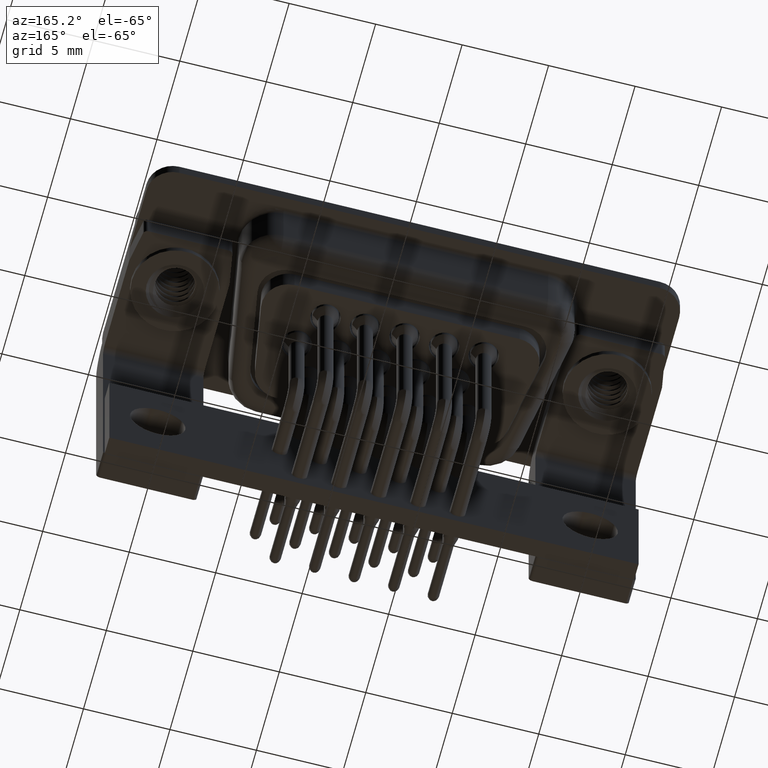
[diagram: clean part render]
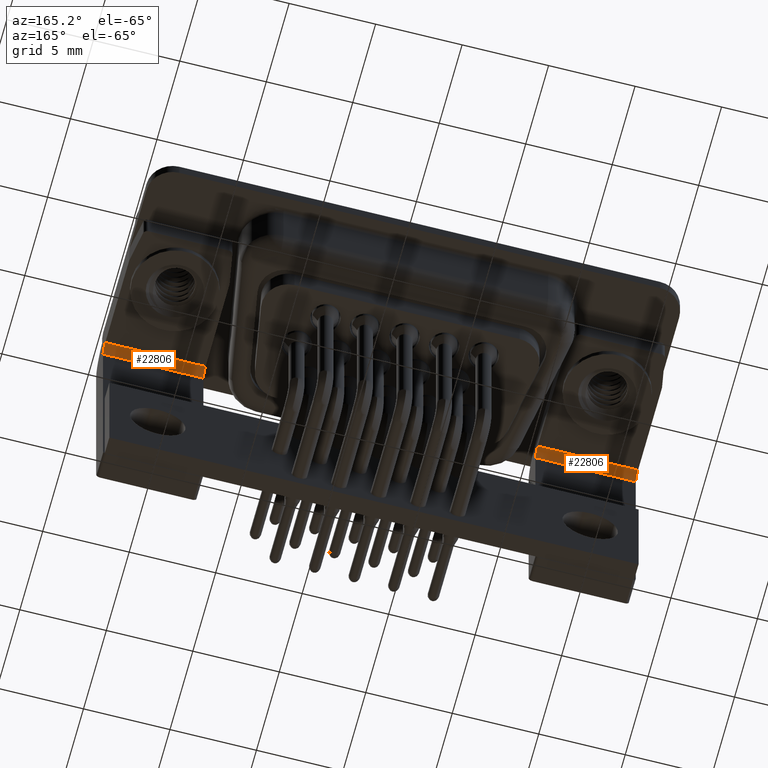
[diagram: same view with one multi-face feature highlighted, each face labeled with its STEP entity id]
A machine part, auxiliary view. The highlighted faces form ONE feature: a constant-radius fillet chain: 2 tangent blend faces with common blend radius 0.5 mm. The faces share edges in the B-rep.
Their STEP definitions:
[1] entity #22806 (Cylinder):
#141 = AXIS2_PLACEMENT_3D ( 'NONE', #3854, #16202, #5639 ) ;
#267 = DIRECTION ( 'NONE',  ( -1.000000000000000000, -0.0000000000000000000, -0.0000000000000000000 ) ) ;
#1172 = CYLINDRICAL_SURFACE ( 'NONE', #19547, 0.5000000000000004400 ) ;
#1437 = VERTEX_POINT ( 'NONE', #3936 ) ;
#2101 = CARTESIAN_POINT ( 'NONE',  ( 2.899999999999999900, -4.249999999999999100, -1.900000000000000600 ) ) ;
#2459 = CARTESIAN_POINT ( 'NONE',  ( 2.899999999999999900, -4.750000000000000000, -2.400000000000001200 ) ) ;
#2993 = AXIS2_PLACEMENT_3D ( 'NONE', #4080, #16438, #5867 ) ;
#3036 = LINE ( 'NONE', #2459, #16568 ) ;
#3854 = CARTESIAN_POINT ( 'NONE',  ( -2.899999999999999900, -4.249999999999999100, -2.400000000000001200 ) ) ;
#3936 = CARTESIAN_POINT ( 'NONE',  ( 2.899999999999999900, -4.750000000000000000, -2.400000000000001200 ) ) ;
#4080 = CARTESIAN_POINT ( 'NONE',  ( 2.899999999999999900, -4.249999999999999100, -2.400000000000001200 ) ) ;
#4476 = VERTEX_POINT ( 'NONE', #2101 ) ;
#5639 = DIRECTION ( 'NONE',  ( 0.0000000000000000000, 0.0000000000000000000, 1.000000000000000000 ) ) ;
#5867 = DIRECTION ( 'NONE',  ( 0.0000000000000000000, 0.0000000000000000000, 1.000000000000000000 ) ) ;
#7270 = CARTESIAN_POINT ( 'NONE',  ( 2.899999999999999900, -4.249999999999999100, -1.900000000000000600 ) ) ;
#8105 = CARTESIAN_POINT ( 'NONE',  ( 2.899999999999999900, -4.249999999999999100, -2.400000000000001200 ) ) ;
#9121 = CARTESIAN_POINT ( 'NONE',  ( -2.899999999999999900, -4.750000000000000000, -2.400000000000001200 ) ) ;
#9352 = VERTEX_POINT ( 'NONE', #9121 ) ;
#9400 = CIRCLE ( 'NONE', #141, 0.5000000000000004400 ) ;
#9867 = DIRECTION ( 'NONE',  ( 0.0000000000000000000, 0.0000000000000000000, 1.000000000000000000 ) ) ;
#10140 = VECTOR ( 'NONE', #267, 1000.000000000000000 ) ;
#10693 = LINE ( 'NONE', #7270, #10140 ) ;
#11309 = ORIENTED_EDGE ( 'NONE', *, *, #16209, .T. ) ;
#11846 = ORIENTED_EDGE ( 'NONE', *, *, #17982, .F. ) ;
#13690 = CIRCLE ( 'NONE', #2993, 0.5000000000000004400 ) ;
#14070 = VERTEX_POINT ( 'NONE', #22085 ) ;
#14824 = DIRECTION ( 'NONE',  ( -1.000000000000000000, -0.0000000000000000000, -0.0000000000000000000 ) ) ;
#15131 = DIRECTION ( 'NONE',  ( -1.000000000000000000, -0.0000000000000000000, -0.0000000000000000000 ) ) ;
#16202 = DIRECTION ( 'NONE',  ( -1.000000000000000000, -0.0000000000000000000, 0.0000000000000000000 ) ) ;
#16209 = EDGE_CURVE ( 'NONE', #9352, #14070, #9400, .T. ) ;
#16438 = DIRECTION ( 'NONE',  ( -1.000000000000000000, -0.0000000000000000000, 0.0000000000000000000 ) ) ;
#16568 = VECTOR ( 'NONE', #14824, 1000.000000000000000 ) ;
#16935 = EDGE_CURVE ( 'NONE', #1437, #9352, #3036, .T. ) ;
#17917 = EDGE_LOOP ( 'NONE', ( #11309, #11846, #22691, #18866 ) ) ;
#17982 = EDGE_CURVE ( 'NONE', #4476, #14070, #10693, .T. ) ;
#18866 = ORIENTED_EDGE ( 'NONE', *, *, #16935, .T. ) ;
#19547 = AXIS2_PLACEMENT_3D ( 'NONE', #8105, #15131, #9867 ) ;
#19939 = FACE_OUTER_BOUND ( 'NONE', #17917, .T. ) ;
#20084 = EDGE_CURVE ( 'NONE', #1437, #4476, #13690, .T. ) ;
#22085 = CARTESIAN_POINT ( 'NONE',  ( -2.899999999999999900, -4.249999999999999100, -1.900000000000000600 ) ) ;
#22691 = ORIENTED_EDGE ( 'NONE', *, *, #20084, .F. ) ;
#22806 = ADVANCED_FACE ( 'NONE', ( #19939 ), #1172, .F. ) ;
[2] entity #22806 (Cylinder):
#141 = AXIS2_PLACEMENT_3D ( 'NONE', #3854, #16202, #5639 ) ;
#267 = DIRECTION ( 'NONE',  ( -1.000000000000000000, -0.0000000000000000000, -0.0000000000000000000 ) ) ;
#1172 = CYLINDRICAL_SURFACE ( 'NONE', #19547, 0.5000000000000004400 ) ;
#1437 = VERTEX_POINT ( 'NONE', #3936 ) ;
#2101 = CARTESIAN_POINT ( 'NONE',  ( 2.899999999999999900, -4.249999999999999100, -1.900000000000000600 ) ) ;
#2459 = CARTESIAN_POINT ( 'NONE',  ( 2.899999999999999900, -4.750000000000000000, -2.400000000000001200 ) ) ;
#2993 = AXIS2_PLACEMENT_3D ( 'NONE', #4080, #16438, #5867 ) ;
#3036 = LINE ( 'NONE', #2459, #16568 ) ;
#3854 = CARTESIAN_POINT ( 'NONE',  ( -2.899999999999999900, -4.249999999999999100, -2.400000000000001200 ) ) ;
#3936 = CARTESIAN_POINT ( 'NONE',  ( 2.899999999999999900, -4.750000000000000000, -2.400000000000001200 ) ) ;
#4080 = CARTESIAN_POINT ( 'NONE',  ( 2.899999999999999900, -4.249999999999999100, -2.400000000000001200 ) ) ;
#4476 = VERTEX_POINT ( 'NONE', #2101 ) ;
#5639 = DIRECTION ( 'NONE',  ( 0.0000000000000000000, 0.0000000000000000000, 1.000000000000000000 ) ) ;
#5867 = DIRECTION ( 'NONE',  ( 0.0000000000000000000, 0.0000000000000000000, 1.000000000000000000 ) ) ;
#7270 = CARTESIAN_POINT ( 'NONE',  ( 2.899999999999999900, -4.249999999999999100, -1.900000000000000600 ) ) ;
#8105 = CARTESIAN_POINT ( 'NONE',  ( 2.899999999999999900, -4.249999999999999100, -2.400000000000001200 ) ) ;
#9121 = CARTESIAN_POINT ( 'NONE',  ( -2.899999999999999900, -4.750000000000000000, -2.400000000000001200 ) ) ;
#9352 = VERTEX_POINT ( 'NONE', #9121 ) ;
#9400 = CIRCLE ( 'NONE', #141, 0.5000000000000004400 ) ;
#9867 = DIRECTION ( 'NONE',  ( 0.0000000000000000000, 0.0000000000000000000, 1.000000000000000000 ) ) ;
#10140 = VECTOR ( 'NONE', #267, 1000.000000000000000 ) ;
#10693 = LINE ( 'NONE', #7270, #10140 ) ;
#11309 = ORIENTED_EDGE ( 'NONE', *, *, #16209, .T. ) ;
#11846 = ORIENTED_EDGE ( 'NONE', *, *, #17982, .F. ) ;
#13690 = CIRCLE ( 'NONE', #2993, 0.5000000000000004400 ) ;
#14070 = VERTEX_POINT ( 'NONE', #22085 ) ;
#14824 = DIRECTION ( 'NONE',  ( -1.000000000000000000, -0.0000000000000000000, -0.0000000000000000000 ) ) ;
#15131 = DIRECTION ( 'NONE',  ( -1.000000000000000000, -0.0000000000000000000, -0.0000000000000000000 ) ) ;
#16202 = DIRECTION ( 'NONE',  ( -1.000000000000000000, -0.0000000000000000000, 0.0000000000000000000 ) ) ;
#16209 = EDGE_CURVE ( 'NONE', #9352, #14070, #9400, .T. ) ;
#16438 = DIRECTION ( 'NONE',  ( -1.000000000000000000, -0.0000000000000000000, 0.0000000000000000000 ) ) ;
#16568 = VECTOR ( 'NONE', #14824, 1000.000000000000000 ) ;
#16935 = EDGE_CURVE ( 'NONE', #1437, #9352, #3036, .T. ) ;
#17917 = EDGE_LOOP ( 'NONE', ( #11309, #11846, #22691, #18866 ) ) ;
#17982 = EDGE_CURVE ( 'NONE', #4476, #14070, #10693, .T. ) ;
#18866 = ORIENTED_EDGE ( 'NONE', *, *, #16935, .T. ) ;
#19547 = AXIS2_PLACEMENT_3D ( 'NONE', #8105, #15131, #9867 ) ;
#19939 = FACE_OUTER_BOUND ( 'NONE', #17917, .T. ) ;
#20084 = EDGE_CURVE ( 'NONE', #1437, #4476, #13690, .T. ) ;
#22085 = CARTESIAN_POINT ( 'NONE',  ( -2.899999999999999900, -4.249999999999999100, -1.900000000000000600 ) ) ;
#22691 = ORIENTED_EDGE ( 'NONE', *, *, #20084, .F. ) ;
#22806 = ADVANCED_FACE ( 'NONE', ( #19939 ), #1172, .F. ) ;